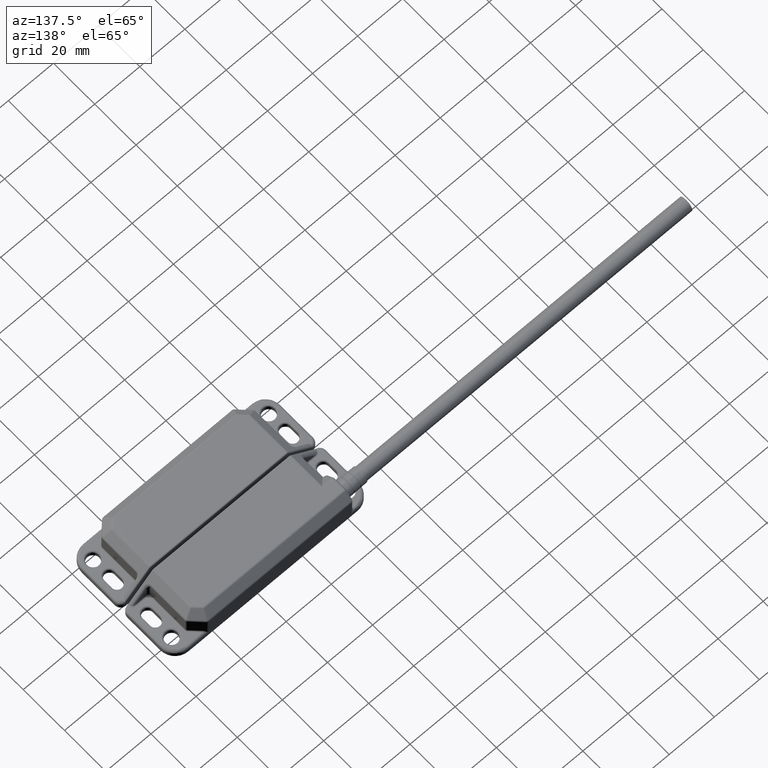
[diagram: clean part render]
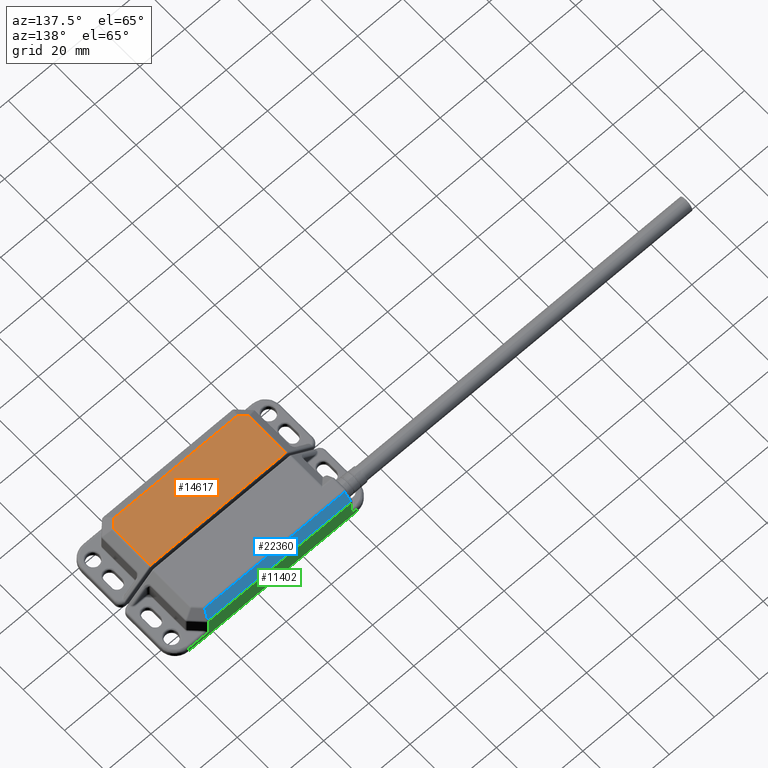
[diagram: same view with three faces highlighted in distinct colors, each labeled with its STEP entity id]
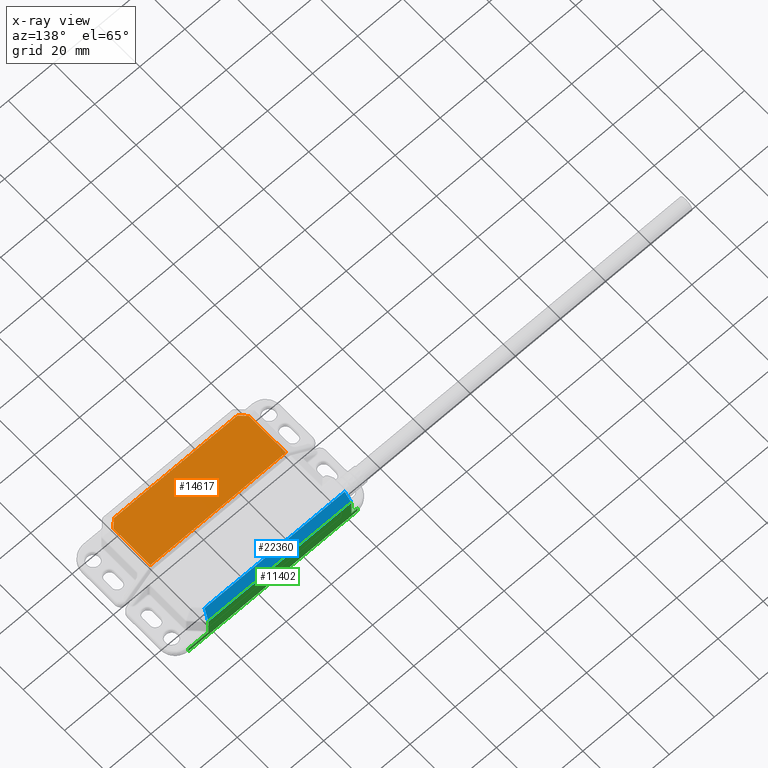
[diagram: x-ray of the same camera — body ghosted, the three highlighted faces saturated]
A machine part, auxiliary view with three faces highlighted in distinct colors.
The next image is the same camera in x-ray (body ghosted, the three faces saturated) — at least one of them is partly hidden behind the body in this view.
Their STEP definitions:

[orange] entity #14617 — the highlighted planar face has unit normal (0, -0, -1).
#273 = FACE_OUTER_BOUND ( 'NONE', #4825, .T. ) ;
#290 = VERTEX_POINT ( 'NONE', #22170 ) ;
#1119 = CARTESIAN_POINT ( 'NONE',  ( 2.810184238442532000, 0.8301490723475155600, 0.5511811023622047400 ) ) ;
#1181 = CARTESIAN_POINT ( 'NONE',  ( 0.6543826906913261500, 0.8301490723475155600, 0.5511811023622048600 ) ) ;
#1708 = VECTOR ( 'NONE', #21820, 39.37007874015748900 ) ;
#2734 = LINE ( 'NONE', #22356, #12650 ) ;
#2749 = ORIENTED_EDGE ( 'NONE', *, *, #18524, .F. ) ;
#3215 = VERTEX_POINT ( 'NONE', #11670 ) ;
#3393 = CARTESIAN_POINT ( 'NONE',  ( 0.0000000000000000000, 0.9842519685039370400, 0.5511811023622047400 ) ) ;
#3643 = VERTEX_POINT ( 'NONE', #19009 ) ;
#3983 = LINE ( 'NONE', #23672, #15694 ) ;
#4261 = ORIENTED_EDGE ( 'NONE', *, *, #7475, .F. ) ;
#4282 = LINE ( 'NONE', #4954, #1708 ) ;
#4825 = EDGE_LOOP ( 'NONE', ( #18453, #17542, #4261, #22079, #9825, #2749 ) ) ;
#4954 = CARTESIAN_POINT ( 'NONE',  ( 0.5478036835579963600, 0.7235700652141865400, 0.5511811023622047400 ) ) ;
#6322 = LINE ( 'NONE', #22642, #8940 ) ;
#7144 = CARTESIAN_POINT ( 'NONE',  ( 0.5478036835579963600, 0.9842519685039370400, 0.5511811023622047400 ) ) ;
#7475 = EDGE_CURVE ( 'NONE', #7928, #3643, #2734, .T. ) ;
#7928 = VERTEX_POINT ( 'NONE', #22756 ) ;
#8016 = VECTOR ( 'NONE', #17778, 39.37007874015748100 ) ;
#8940 = VECTOR ( 'NONE', #13131, 39.37007874015748100 ) ;
#9019 = DIRECTION ( 'NONE',  ( 0.0000000000000000000, 0.0000000000000000000, -1.000000000000000000 ) ) ;
#9825 = ORIENTED_EDGE ( 'NONE', *, *, #20386, .F. ) ;
#10246 = VECTOR ( 'NONE', #20319, 39.37007874015748100 ) ;
#10492 = VERTEX_POINT ( 'NONE', #20347 ) ;
#10525 = DIRECTION ( 'NONE',  ( -1.000000000000000000, 0.0000000000000000000, -0.0000000000000000000 ) ) ;
#10913 = DIRECTION ( 'NONE',  ( -1.000000000000000000, 0.0000000000000000000, -0.0000000000000000000 ) ) ;
#11670 = CARTESIAN_POINT ( 'NONE',  ( 0.5478036835579963600, 0.7235700652141866500, 0.5511811023622048600 ) ) ;
#12650 = VECTOR ( 'NONE', #24246, 39.37007874015748100 ) ;
#12686 = PLANE ( 'NONE',  #17401 ) ;
#13003 = LINE ( 'NONE', #1119, #8016 ) ;
#13131 = DIRECTION ( 'NONE',  ( 1.000000000000000000, -0.0000000000000000000, 0.0000000000000000000 ) ) ;
#13909 = EDGE_CURVE ( 'NONE', #10492, #3215, #15477, .T. ) ;
#14617 = ADVANCED_FACE ( 'NONE', ( #273 ), #12686, .F. ) ;
#15477 = LINE ( 'NONE', #7144, #10246 ) ;
#15694 = VECTOR ( 'NONE', #10525, 39.37007874015748100 ) ;
#15900 = EDGE_CURVE ( 'NONE', #3643, #10492, #3983, .T. ) ;
#16937 = EDGE_CURVE ( 'NONE', #290, #7928, #13003, .T. ) ;
#17401 = AXIS2_PLACEMENT_3D ( 'NONE', #3393, #9019, #10913 ) ;
#17542 = ORIENTED_EDGE ( 'NONE', *, *, #15900, .F. ) ;
#17778 = DIRECTION ( 'NONE',  ( 0.7071067811865493500, -0.7071067811865458000, 0.0000000000000000000 ) ) ;
#18453 = ORIENTED_EDGE ( 'NONE', *, *, #13909, .F. ) ;
#18524 = EDGE_CURVE ( 'NONE', #3215, #20997, #4282, .T. ) ;
#19009 = CARTESIAN_POINT ( 'NONE',  ( 2.916763245575861900, 0.01968503937007874000, 0.5511811023622048600 ) ) ;
#20319 = DIRECTION ( 'NONE',  ( 0.0000000000000000000, 1.000000000000000000, 0.0000000000000000000 ) ) ;
#20347 = CARTESIAN_POINT ( 'NONE',  ( 0.5478036835579963600, 0.01968503937007875700, 0.5511811023622047400 ) ) ;
#20386 = EDGE_CURVE ( 'NONE', #20997, #290, #6322, .T. ) ;
#20997 = VERTEX_POINT ( 'NONE', #1181 ) ;
#21820 = DIRECTION ( 'NONE',  ( 0.7071067811865503500, 0.7071067811865444600, 0.0000000000000000000 ) ) ;
#22079 = ORIENTED_EDGE ( 'NONE', *, *, #16937, .F. ) ;
#22170 = CARTESIAN_POINT ( 'NONE',  ( 2.810184238442532000, 0.8301490723475136700, 0.5511811023622048600 ) ) ;
#22356 = CARTESIAN_POINT ( 'NONE',  ( 2.916763245575861900, 0.9842519685039370400, 0.5511811023622047400 ) ) ;
#22642 = CARTESIAN_POINT ( 'NONE',  ( 0.0000000000000000000, 0.8301490723475155600, 0.5511811023622047400 ) ) ;
#22756 = CARTESIAN_POINT ( 'NONE',  ( 2.916763245575861900, 0.7235700652141863200, 0.5511811023622048600 ) ) ;
#23672 = CARTESIAN_POINT ( 'NONE',  ( 0.0000000000000000000, 0.01968503937007875700, 0.5511811023622047400 ) ) ;
#24246 = DIRECTION ( 'NONE',  ( -0.0000000000000000000, -1.000000000000000000, -0.0000000000000000000 ) ) ;

[blue] entity #22360 — the highlighted planar face has unit normal (0, -0.7071, -0.7071).
#4478 = PLANE ( 'NONE',  #8950 ) ;
#5386 = ORIENTED_EDGE ( 'NONE', *, *, #18698, .F. ) ;
#5539 = DIRECTION ( 'NONE',  ( -0.2810846377148131800, -0.6785983445458498900, 0.6785983445458470000 ) ) ;
#6394 = CARTESIAN_POINT ( 'NONE',  ( 0.0000000000000000000, 0.8464566929133853200, 0.5511811023622047400 ) ) ;
#6812 = FACE_OUTER_BOUND ( 'NONE', #15070, .T. ) ;
#7264 = VECTOR ( 'NONE', #10922, 39.37007874015748100 ) ;
#8312 = VERTEX_POINT ( 'NONE', #20605 ) ;
#8950 = AXIS2_PLACEMENT_3D ( 'NONE', #6394, #12029, #23322 ) ;
#9086 = VERTEX_POINT ( 'NONE', #18267 ) ;
#10922 = DIRECTION ( 'NONE',  ( 1.000000000000000000, 0.0000000000000000000, 0.0000000000000000000 ) ) ;
#12029 = DIRECTION ( 'NONE',  ( 0.0000000000000000000, -0.7071067811865462400, -0.7071067811865489100 ) ) ;
#12163 = VERTEX_POINT ( 'NONE', #21628 ) ;
#12205 = LINE ( 'NONE', #19021, #22453 ) ;
#12874 = CARTESIAN_POINT ( 'NONE',  ( 2.857708127465624000, 0.9727207394167931600, 0.4249170558587974700 ) ) ;
#13128 = ORIENTED_EDGE ( 'NONE', *, *, #21572, .F. ) ;
#13949 = EDGE_CURVE ( 'NONE', #8312, #9086, #20446, .T. ) ;
#14482 = VECTOR ( 'NONE', #5539, 39.37007874015748900 ) ;
#15070 = EDGE_LOOP ( 'NONE', ( #13128, #5386, #16790, #21488 ) ) ;
#16646 = EDGE_CURVE ( 'NONE', #9086, #12163, #19471, .T. ) ;
#16790 = ORIENTED_EDGE ( 'NONE', *, *, #16646, .F. ) ;
#17041 = DIRECTION ( 'NONE',  ( -1.000000000000000000, 0.0000000000000000000, 0.0000000000000000000 ) ) ;
#18267 = CARTESIAN_POINT ( 'NONE',  ( 2.857708127465623100, 0.9727207394167921600, 0.4249170558587984100 ) ) ;
#18283 = VERTEX_POINT ( 'NONE', #22184 ) ;
#18698 = EDGE_CURVE ( 'NONE', #12163, #18283, #12205, .T. ) ;
#18854 = VECTOR ( 'NONE', #23624, 39.37007874015748900 ) ;
#19021 = CARTESIAN_POINT ( 'NONE',  ( 0.0000000000000000000, 0.8579879220005292000, 0.5396498732750612000 ) ) ;
#19471 = LINE ( 'NONE', #12874, #14482 ) ;
#19690 = CARTESIAN_POINT ( 'NONE',  ( 0.3622047244094488400, 0.8464566929133853200, 0.5511811023622047400 ) ) ;
#20446 = LINE ( 'NONE', #24179, #7264 ) ;
#20605 = CARTESIAN_POINT ( 'NONE',  ( 0.3622047244094488400, 0.9727207394167931600, 0.4249170558587974700 ) ) ;
#21488 = ORIENTED_EDGE ( 'NONE', *, *, #13949, .F. ) ;
#21572 = EDGE_CURVE ( 'NONE', #18283, #8312, #22081, .T. ) ;
#21628 = CARTESIAN_POINT ( 'NONE',  ( 2.810184238442532000, 0.8579879220005285400, 0.5396498732750615300 ) ) ;
#22081 = LINE ( 'NONE', #19690, #18854 ) ;
#22184 = CARTESIAN_POINT ( 'NONE',  ( 0.3622047244094486800, 0.8579879220005292000, 0.5396498732750612000 ) ) ;
#22360 = ADVANCED_FACE ( 'NONE', ( #6812 ), #4478, .F. ) ;
#22453 = VECTOR ( 'NONE', #17041, 39.37007874015748100 ) ;
#23322 = DIRECTION ( 'NONE',  ( 0.0000000000000000000, 0.7071067811865487900, -0.7071067811865461300 ) ) ;
#23624 = DIRECTION ( 'NONE',  ( 0.0000000000000000000, 0.7071067811865487900, -0.7071067811865461300 ) ) ;
#24179 = CARTESIAN_POINT ( 'NONE',  ( 0.0000000000000000000, 0.9727207394167931600, 0.4249170558587974700 ) ) ;

[green] entity #11402 — the highlighted planar face has unit normal (0, -1, 0).
#285 = VECTOR ( 'NONE', #16589, 39.37007874015748100 ) ;
#288 = PLANE ( 'NONE',  #2317 ) ;
#338 = LINE ( 'NONE', #11524, #13437 ) ;
#1091 = CARTESIAN_POINT ( 'NONE',  ( 3.208661417322834300, 0.9842519685039370400, 0.0000000000000000000 ) ) ;
#1715 = EDGE_CURVE ( 'NONE', #9023, #22938, #338, .T. ) ;
#1916 = DIRECTION ( 'NONE',  ( -1.000000000000000000, -0.0000000000000000000, -0.0000000000000000000 ) ) ;
#2215 = CARTESIAN_POINT ( 'NONE',  ( 0.0000000000000000000, 0.9842519685039370400, 0.5511811023622047400 ) ) ;
#2317 = AXIS2_PLACEMENT_3D ( 'NONE', #2215, #22656, #18737 ) ;
#3319 = ORIENTED_EDGE ( 'NONE', *, *, #18273, .F. ) ;
#3345 = CARTESIAN_POINT ( 'NONE',  ( 3.208661417322834300, 0.9842519685039370400, 0.07874015748031496000 ) ) ;
#3693 = CARTESIAN_POINT ( 'NONE',  ( 0.2559055118110236700, 0.9842519685039370400, 0.07874015748031496000 ) ) ;
#4137 = EDGE_CURVE ( 'NONE', #6052, #20891, #12231, .T. ) ;
#4578 = CARTESIAN_POINT ( 'NONE',  ( 2.857708127465623500, 0.9842519685039370400, 0.5511811023622047400 ) ) ;
#5002 = EDGE_LOOP ( 'NONE', ( #11617, #3319, #7253, #11316, #9242, #9255, #11203, #20955 ) ) ;
#6052 = VERTEX_POINT ( 'NONE', #18059 ) ;
#6978 = VERTEX_POINT ( 'NONE', #10545 ) ;
#7253 = ORIENTED_EDGE ( 'NONE', *, *, #17286, .F. ) ;
#7376 = LINE ( 'NONE', #15854, #14977 ) ;
#7749 = DIRECTION ( 'NONE',  ( -0.0000000000000000000, -0.0000000000000000000, -1.000000000000000000 ) ) ;
#8300 = VECTOR ( 'NONE', #21301, 39.37007874015748100 ) ;
#9001 = CARTESIAN_POINT ( 'NONE',  ( 3.208661417322834300, 0.9842519685039370400, 0.5511811023622047400 ) ) ;
#9023 = VERTEX_POINT ( 'NONE', #15649 ) ;
#9242 = ORIENTED_EDGE ( 'NONE', *, *, #12969, .F. ) ;
#9255 = ORIENTED_EDGE ( 'NONE', *, *, #4137, .F. ) ;
#9730 = EDGE_CURVE ( 'NONE', #11281, #6052, #23708, .T. ) ;
#10365 = EDGE_CURVE ( 'NONE', #22938, #11281, #7376, .T. ) ;
#10465 = VECTOR ( 'NONE', #1916, 39.37007874015748100 ) ;
#10539 = VERTEX_POINT ( 'NONE', #3345 ) ;
#10545 = CARTESIAN_POINT ( 'NONE',  ( 2.857708127465623100, 0.9842519685039369200, 0.07874015748031494600 ) ) ;
#11132 = CARTESIAN_POINT ( 'NONE',  ( 0.0000000000000000000, 0.9842519685039370400, 0.3970782062057836000 ) ) ;
#11203 = ORIENTED_EDGE ( 'NONE', *, *, #9730, .F. ) ;
#11281 = VERTEX_POINT ( 'NONE', #3693 ) ;
#11316 = ORIENTED_EDGE ( 'NONE', *, *, #20711, .F. ) ;
#11402 = ADVANCED_FACE ( 'NONE', ( #20820 ), #288, .F. ) ;
#11524 = CARTESIAN_POINT ( 'NONE',  ( 0.3622047244094486800, 0.9842519685039370400, 0.5511811023622047400 ) ) ;
#11617 = ORIENTED_EDGE ( 'NONE', *, *, #1715, .F. ) ;
#12231 = LINE ( 'NONE', #22075, #285 ) ;
#12969 = EDGE_CURVE ( 'NONE', #20891, #10539, #16404, .T. ) ;
#12978 = LINE ( 'NONE', #4578, #8300 ) ;
#13091 = CARTESIAN_POINT ( 'NONE',  ( 0.0000000000000000000, 0.9842519685039370400, 0.07874015748031496000 ) ) ;
#13437 = VECTOR ( 'NONE', #7749, 39.37007874015748100 ) ;
#14977 = VECTOR ( 'NONE', #19785, 39.37007874015748100 ) ;
#15649 = CARTESIAN_POINT ( 'NONE',  ( 0.3622047244094486800, 0.9842519685039370400, 0.3970782062057836000 ) ) ;
#15854 = CARTESIAN_POINT ( 'NONE',  ( 0.0000000000000000000, 0.9842519685039370400, 0.07874015748031496000 ) ) ;
#16062 = CARTESIAN_POINT ( 'NONE',  ( 0.2559055118110236700, 0.9842519685039370400, 0.5511811023622047400 ) ) ;
#16404 = LINE ( 'NONE', #9001, #21973 ) ;
#16457 = DIRECTION ( 'NONE',  ( -0.0000000000000000000, 0.0000000000000000000, 1.000000000000000000 ) ) ;
#16589 = DIRECTION ( 'NONE',  ( 1.000000000000000000, -0.0000000000000000000, 0.0000000000000000000 ) ) ;
#16875 = DIRECTION ( 'NONE',  ( -1.000000000000000000, -0.0000000000000000000, -0.0000000000000000000 ) ) ;
#17286 = EDGE_CURVE ( 'NONE', #6978, #23659, #12978, .T. ) ;
#18059 = CARTESIAN_POINT ( 'NONE',  ( 0.2559055118110236700, 0.9842519685039370400, 0.0000000000000000000 ) ) ;
#18273 = EDGE_CURVE ( 'NONE', #23659, #9023, #18662, .T. ) ;
#18662 = LINE ( 'NONE', #11132, #10465 ) ;
#18733 = VECTOR ( 'NONE', #21477, 39.37007874015748100 ) ;
#18737 = DIRECTION ( 'NONE',  ( 0.0000000000000000000, -0.0000000000000000000, -1.000000000000000000 ) ) ;
#19191 = LINE ( 'NONE', #13091, #21554 ) ;
#19785 = DIRECTION ( 'NONE',  ( -1.000000000000000000, -0.0000000000000000000, -0.0000000000000000000 ) ) ;
#20711 = EDGE_CURVE ( 'NONE', #10539, #6978, #19191, .T. ) ;
#20820 = FACE_OUTER_BOUND ( 'NONE', #5002, .T. ) ;
#20891 = VERTEX_POINT ( 'NONE', #1091 ) ;
#20955 = ORIENTED_EDGE ( 'NONE', *, *, #10365, .F. ) ;
#21301 = DIRECTION ( 'NONE',  ( -0.0000000000000000000, 0.0000000000000000000, 1.000000000000000000 ) ) ;
#21477 = DIRECTION ( 'NONE',  ( 0.0000000000000000000, -0.0000000000000000000, -1.000000000000000000 ) ) ;
#21554 = VECTOR ( 'NONE', #16875, 39.37007874015748100 ) ;
#21766 = CARTESIAN_POINT ( 'NONE',  ( 2.857708127465623500, 0.9842519685039370400, 0.3970782062057834300 ) ) ;
#21973 = VECTOR ( 'NONE', #16457, 39.37007874015748100 ) ;
#22048 = CARTESIAN_POINT ( 'NONE',  ( 0.3622047244094487300, 0.9842519685039369200, 0.07874015748031494600 ) ) ;
#22075 = CARTESIAN_POINT ( 'NONE',  ( 0.0000000000000000000, 0.9842519685039370400, 0.0000000000000000000 ) ) ;
#22656 = DIRECTION ( 'NONE',  ( 0.0000000000000000000, -1.000000000000000000, 0.0000000000000000000 ) ) ;
#22938 = VERTEX_POINT ( 'NONE', #22048 ) ;
#23659 = VERTEX_POINT ( 'NONE', #21766 ) ;
#23708 = LINE ( 'NONE', #16062, #18733 ) ;